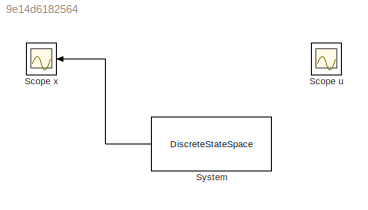
MODEL slx_9e14d6182564
KIND model
BLOCK [Scope] Scope u
  DataFormat = StructureWithTime
  Decimation = 1
  Grid = on
  LimitDataPoints = off
  MaxDataPoints = 5000
  NumInputPorts = 1
  Ports = [1]
  SampleInput = off
  SampleTime = -1
  SaveName = ScopeData1
  SaveToWorkspace = off
  ShowLegends = off
  TickLabels = OneTimeTick
  TimeRange = auto
  YMax = 0.0901
  YMin = -0.56557
  ZoomMode = on
BLOCK [Scope] Scope x
  DataFormat = StructureWithTime
  Decimation = 1
  Grid = on
  LimitDataPoints = off
  MaxDataPoints = 5000
  NumInputPorts = 1
  Ports = [1]
  SampleInput = off
  SampleTime = -1
  SaveName = ScopeData
  SaveToWorkspace = off
  ShowLegends = off
  TickLabels = OneTimeTick
  TimeRange = auto
  YMax = 2.75
  YMin = -4.75
  ZoomMode = on
BLOCK [DiscreteStateSpace] System
  A = [1.1 1;0 1]
  B = [1 0.5]'
  C = eye(2)
  D = zeros(2,1)
  SampleTime = 0.1
  X0 = [-4 2]'
LINE System:1 -> Scope x:1
